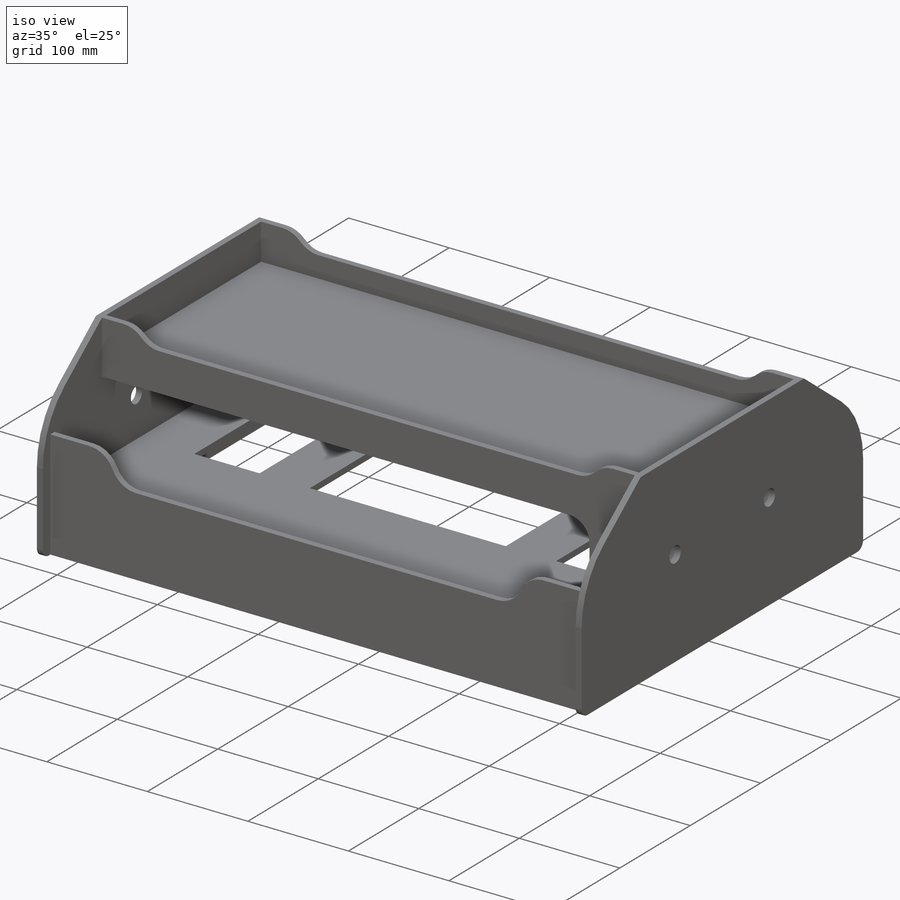
[diagram: iso view]
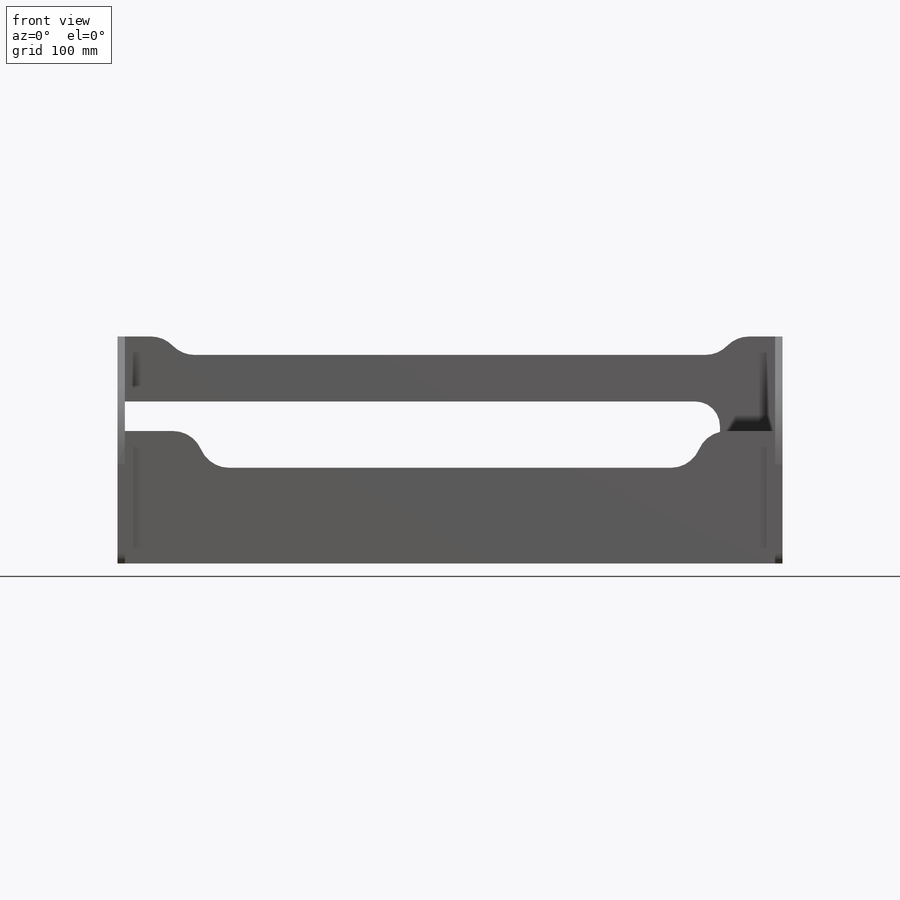
[diagram: front view]
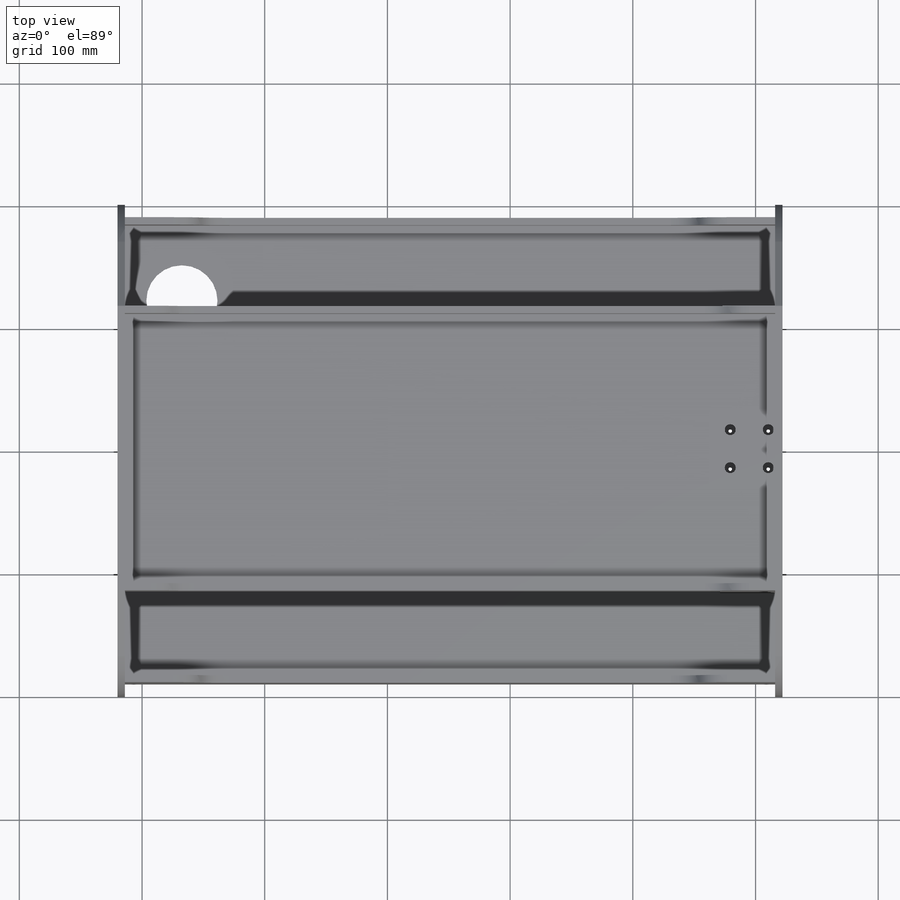
[diagram: top view]
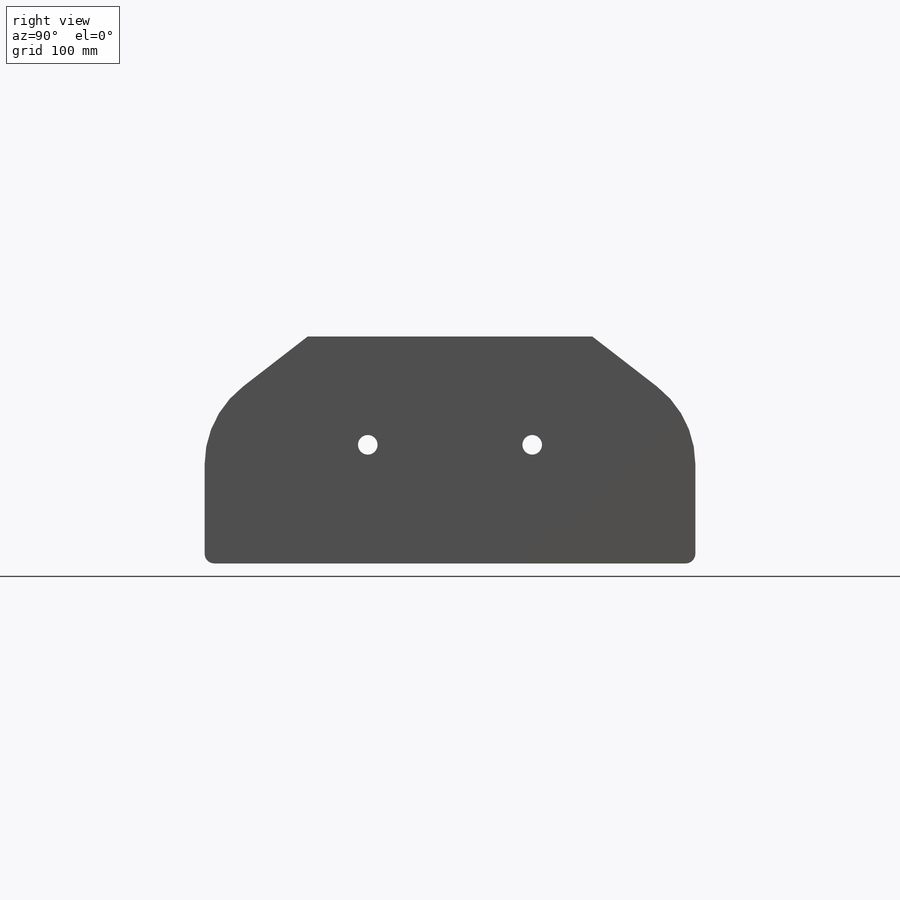
[diagram: right view]
SOLIDWORKS PART (.sldprt)
format: sldprt  version: not decoded by parser v0  size: 986,112 bytes
history: native  units: mm
features: sketch x22, extrude x12, cut_extrude x10, fillet x6, plane x3, material x1 (+10 scaffold rows collapsed)
feature tree (64):
  scaffold x10  (default folders/planes/origin — collapsed)
  material  "Birch plywood FK"
  plane  "Спереди"
  plane  "Сверху"
  plane  "Справа"
  sketch  "Эскиз2"  dims[D1=220.0mm D2=432.0mm]
  extrude  "Бобышка-Вытянуть2"  Depth=6mm
  sketch  "Эскиз4"  dims[D1=2.0mm]
  extrude  "Бобышка-Вытянуть3"  [1 undecoded]
  sketch  "Эскиз5"
  extrude  "Бобышка-Вытянуть4"  Depth=108mm
  sketch  "Эскиз6"
  extrude  "Бобышка-Вытянуть5"  Depth=25mm
  sketch  "Эскиз7"  dims[D1=120.0mm D2=200.0mm D3=185.0mm]
  extrude  "Бобышка-Вытянуть6"  Depth=6mm
  sketch  "Эскиз8"
  extrude  "Бобышка-Вытянуть7"  Depth=6mm
  sketch  "Эскиз9"  dims[D1=6.0mm D2=3.0mm D3=367.0mm]
  extrude  "Бобышка-Вытянуть8"  [1 undecoded]
  sketch  "Эскиз10"  dims[D1=16.0mm]
  cut_extrude  "Вырез-Вытянуть1"  [1 undecoded]
  sketch  "Эскиз11"
  extrude  "Бобышка-Вытянуть9"  [1 undecoded]
  sketch  "Эскиз12"  dims[D1=55.0mm D2=50.0mm D3=50.0mm D4=50.0mm D5=120.0mm D6=195.0mm]
  cut_extrude  "Вырез-Вытянуть2"  Depth=6mm
  sketch  "Эскиз13"  dims[D1=3.0mm]
  cut_extrude  "Вырез-Вытянуть3"  Depth=10mm
  sketch  "Эскиз14"  dims[D1=6.0mm]
  extrude  "Бобышка-Вытянуть10"  Depth=45mm
  sketch  "Эскиз15"  dims[D1=3.0mm]
  cut_extrude  "Вырез-Вытянуть4"  Depth=6mm
  sketch  "Эскиз16"  dims[D1=9.0mm]
  cut_extrude  "Вырез-Вытянуть5"  Depth=6mm
  fillet  "Скругление1"  Radius=80mm
  fillet  "Скругление2"  Radius=8mm
  sketch  "Эскиз18"
  extrude  "Бобышка-Вытянуть11"  [1 undecoded]
  sketch  "Эскиз19"  dims[D1=60.0mm D2=60.0mm D3=30.0mm D4=40.0mm D5=40.0mm D6=6.0mm]
  cut_extrude  "Вырез-Вытянуть8"  [1 undecoded]
  fillet  "Скругление4"  Radius=25mm
  fillet  "Скругление6"  Radius=20mm
  sketch  "Эскиз20"
  extrude  "Бобышка-Вытянуть12"  Depth=35mm
  fillet  "Скругление7"  Radius=15mm
  sketch  "Эскиз21"
  extrude  "Бобышка-Вытянуть13"  [1 undecoded]
  sketch  "Эскиз22"  dims[D1=2.0mm D2=17.5mm]
  cut_extrude  "Вырез-Вытянуть9"  [1 undecoded]
  sketch  "Эскиз23"  dims[D1=1.0mm D2=10.0mm]
  cut_extrude  "Вырез-Вытянуть10"  [1 undecoded]
  sketch  "Эскиз24"  dims[D1=40.0mm D2=40.0mm D3=60.0mm]
  cut_extrude  "Вырез-Вытянуть11"  [1 undecoded]
  sketch  "Эскиз25"
  cut_extrude  "Вырез-Вытянуть12"  [1 undecoded]
  fillet  "Скругление8"  Radius=70mm
decode coverage: 31 of 50 modeling features carry decoded parameters
note: 11 parameter values undecoded
summary: no parameter record found for 11 features
note: suppression state not decoded; provenance and decode notes live in map.json
